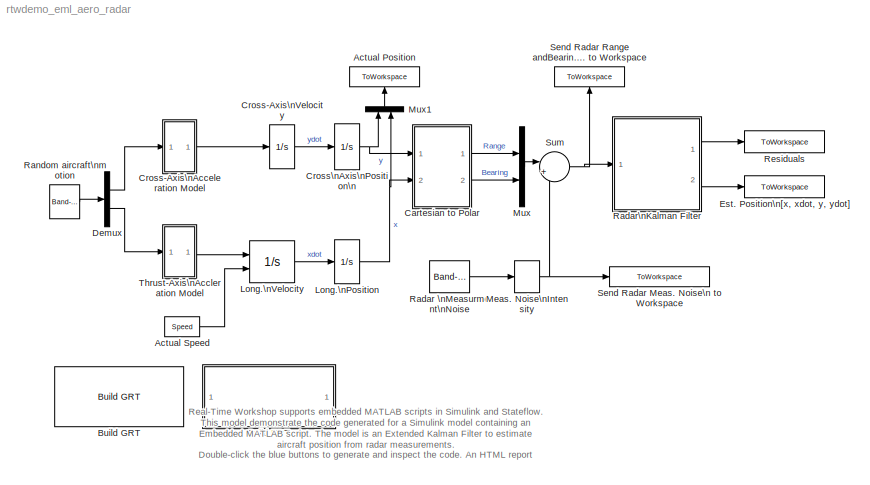
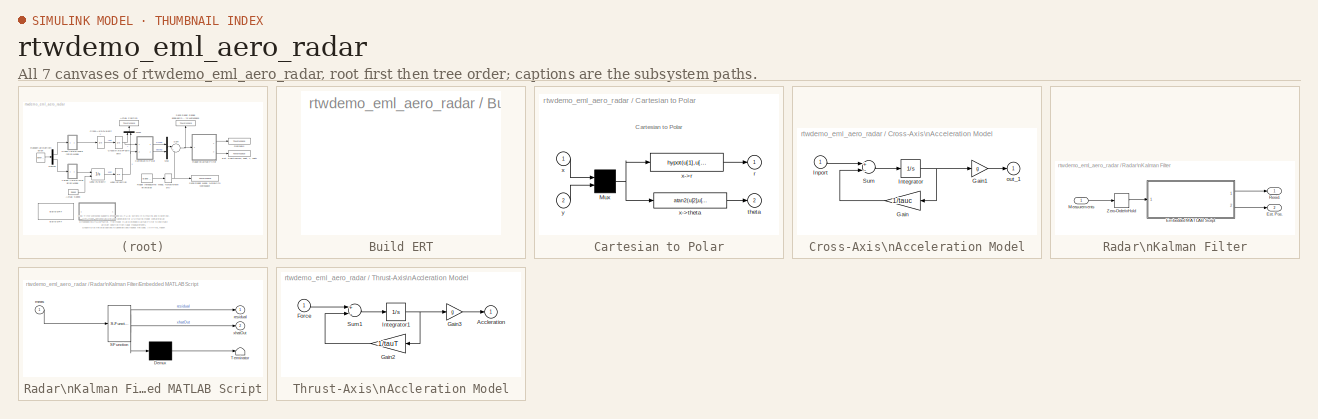
[diagram: thumbnail index - all 7 canvases of the model, root first then tree order]
MODEL rtwdemo_eml_aero_radar
KIND model
CONFIG PostLoadFcn = rtwdemo_eml_aero_radar_data
CONFIG StopFcn = aero_radplot;
BLOCK [ToWorkspace] Actual Position
  MaxDataPoints = inf
  SaveFormat = Array
  VariableName = XYCoords
BLOCK [Constant] Actual Speed
  Value = Speed
BLOCK [SubSystem] Build ERT
  AncestorBlock = rtwdemowidgets/Build ERT
  MaskDescription = Enter the attributes of the configuration set that you want preserved.  Otherwise, the default configuration script will override your current settings.
  MaskDisplay = disp(['Generate Code Using\\n',...\n	  'Real-Time Workshop\\n',...\n	  'Embedded Coder\\n'...\n	  '(double-click)'])
  MaskEnableString = on
  MaskIconFrame = on
  MaskIconOpaque = on
  MaskIconRotate = none
  MaskIconUnits = autoscale
  MaskPromptString = List of attributes to preserve (cell of strings):
  MaskStyleString = edit
  MaskToolTipString = on
  MaskTunableValueString = off
  MaskValueString = {}
  MaskVariables = attrib_overrides=&1;
  MaskVisibilityString = on
  MinAlgLoopOccurrences = off
  OpenFcn = model=bdroot;                                    \noverrides=get_param(gcb,'attrib_overrides');     \ntry                                              \n  rtwconfiguredemo(model,'noop',false,overrides);\n  cs = getActiveConfigSet(model);                \n  set_param(cs,'SupportNonFinite','on');         \n  rtwbuilddemomodel(model);                      \ncatch                                      ...<+110ch>
  Ports = []
  PropExecContextAcrossSSBoundary = on
  RTWSystemCode = Auto
  TreatAsAtomicUnit = off
BLOCK [Reference] Build GRT  REF=rtwdemowidgets/Build GRT
  Ports = []
  ShowPortLabels = on
  SourceBlock = rtwdemowidgets/Build GRT
  attrib_overrides = {}
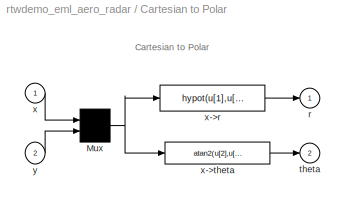
BLOCK [SubSystem] Cartesian to Polar
  MaskDescription = Tranformation from cartesian to polar\ncoordinates.\nr=sqrt(x^2+y^2), theta=atan(y/x)
  MaskDisplay = plot(0,0,100,100,[24,20,15,20,20],[85,95,85,95,20],[80,20,95,85,95,85],[70,20,20,15,20,24],[56,56,55,52,50,46],[20,26,31,35,38,42])
  MaskHelp = Unmask this block for more help.
  MaskIconFrame = on
  MaskIconOpaque = on
  MaskIconRotate = none
  MaskIconUnits = autoscale
  MaskType = [x,y]->[r,theta]
  MinAlgLoopOccurrences = off
  Ports = [2, 2]
  PropExecContextAcrossSSBoundary = on
  RTWSystemCode = Auto
  ShowPortLabels = off
  TreatAsAtomicUnit = off
BLOCK [Mux] Cartesian to Polar/Mux
  Inputs = 2
  Ports = [2, 1]
BLOCK [Outport] Cartesian to Polar/r
  BusOutputAsStruct = off
  IconDisplay = Port number
  InitialOutput = 0
BLOCK [Outport] Cartesian to Polar/theta
  BusOutputAsStruct = off
  IconDisplay = Port number
  InitialOutput = 0
  Port = 2
BLOCK [Inport] Cartesian to Polar/x
  IconDisplay = Port number
  LatchInput = off
  Port = 1
BLOCK [Fcn] Cartesian to Polar/x->r
  Expr = hypot(u[1],u[2])
BLOCK [Fcn] Cartesian to Polar/x->theta
  Expr = atan2(u[2],u[1])
BLOCK [Inport] Cartesian to Polar/y
  IconDisplay = Port number
  LatchInput = off
  Port = 2
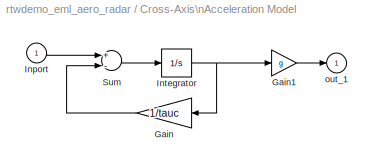
BLOCK [SubSystem] Cross-Axis\nAcceleration Model
  MinAlgLoopOccurrences = off
  Ports = [1, 1]
  PropExecContextAcrossSSBoundary = on
  RTWSystemCode = Auto
  ShowPortLabels = off
  TreatAsAtomicUnit = off
BLOCK [Gain] Cross-Axis\nAcceleration Model/Gain
  Gain = 1/tauc
BLOCK [Gain] Cross-Axis\nAcceleration Model/Gain1
  Gain = g
BLOCK [Inport] Cross-Axis\nAcceleration Model/Inport
  IconDisplay = Port number
  LatchInput = off
  Port = 1
BLOCK [Integrator] Cross-Axis\nAcceleration Model/Integrator
  Ports = [1, 1]
BLOCK [Sum] Cross-Axis\nAcceleration Model/Sum
  Inputs = +-
  Ports = [2, 1]
BLOCK [Outport] Cross-Axis\nAcceleration Model/out_1
  BusOutputAsStruct = off
  IconDisplay = Port number
  InitialOutput = 0
BLOCK [Integrator] Cross-Axis\nVelocity
  Ports = [1, 1]
BLOCK [Integrator] Cross\nAxis\nPosition\n
  Ports = [1, 1]
BLOCK [Demux] Demux
  Outputs = 2
  Ports = [1, 2]
BLOCK [ToWorkspace] Est. Position\n[x, xdot, y, ydot]
  MaxDataPoints = inf
  SampleTime = -1
  SaveFormat = Array
  VariableName = X_hat
BLOCK [Integrator] Long.\nPosition
  Ports = [1, 1]
BLOCK [Integrator] Long.\nVelocity
  InitialConditionSource = external
  Ports = [2, 1]
BLOCK [StateSpace] Meas. Noise\nIntensity
  A = []
  B = []
  C = []
  D = K
  MaskDescription = Matrix Gain.
  MaskDisplay = disp('K')
  MaskEnableString = on
  MaskHelp = Multiplies input vector by entered matrix to produce output vector (y=Au).
  MaskIconFrame = on
  MaskIconOpaque = on
  MaskIconRotate = none
  MaskIconUnits = autoscale
  MaskInitialization = K = @1;
  MaskPromptString = Gain matrix:
  MaskStyleString = edit
  MaskToolTipString = on
  MaskTunableValueString = on
  MaskType = Matrix Gain
  MaskValueString = [300 0; 0 .01]
  MaskVisibilityString = on
BLOCK [Mux] Mux
  DisplayOption = bar
  Inputs = 2
  Ports = [2, 1]
BLOCK [Mux] Mux1
  DisplayOption = bar
  Inputs = 2
  Ports = [2, 1]
BLOCK [Reference] Radar \nMeasurment\nNoise  REF=simulink/Sources/Band-Limited\nWhite Noise
  Cov = [1 1]
  Ports = [0, 1]
  ShowPortLabels = on
  SourceBlock = simulink/Sources/Band-Limited\nWhite Noise
  SourceType = Band-Limited White Noise.
  Ts = 0.1
  VectorParams1D = on
  seed = [52341 62341]
BLOCK [SubSystem] Radar\nKalman Filter
  MinAlgLoopOccurrences = off
  Ports = [1, 2]
  PropExecContextAcrossSSBoundary = on
  RTWSystemCode = Auto
  TreatAsAtomicUnit = off
BLOCK [SubSystem] Radar\nKalman Filter/Embedded MATLAB Script
  MaskDescription = Stateflow diagram
  MaskDisplay = disp('AERO_EXTKALMAN');
  MaskIconFrame = on
  MaskIconOpaque = off
  MaskIconRotate = none
  MaskIconUnits = autoscale
  MaskSelfModifiable = on
  MaskType = Stateflow
  MinAlgLoopOccurrences = off
  Ports = [1, 2]
  PropExecContextAcrossSSBoundary = on
  RTWSystemCode = Auto
  TreatAsAtomicUnit = off
BLOCK [Demux] Radar\nKalman Filter/Embedded MATLAB Script/ Demux 
  Outputs = 1
  Ports = [1, 1]
BLOCK [S-Function] Radar\nKalman Filter/Embedded MATLAB Script/ SFunction 
  FunctionName = sf_sfun
  Parameters = deltat
  PortCounts = [1 3]
  Ports = [1, 3]
  Tag = Stateflow S-Function rtwdemo_eml_aero_radar 1
BLOCK [Terminator] Radar\nKalman Filter/Embedded MATLAB Script/ Terminator 
BLOCK [Inport] Radar\nKalman Filter/Embedded MATLAB Script/meas
  IconDisplay = Port number
  LatchInput = off
  Port = 1
BLOCK [Outport] Radar\nKalman Filter/Embedded MATLAB Script/residual
  BusOutputAsStruct = off
  IconDisplay = Port number
BLOCK [Outport] Radar\nKalman Filter/Embedded MATLAB Script/xhatOut
  BusOutputAsStruct = off
  IconDisplay = Port number
  Port = 2
BLOCK [Outport] Radar\nKalman Filter/Est. Pos.
  BusOutputAsStruct = off
  IconDisplay = Port number
  InitialOutput = 0
  Port = 2
BLOCK [Inport] Radar\nKalman Filter/Measurements
  IconDisplay = Port number
  LatchInput = off
  Port = 1
BLOCK [Outport] Radar\nKalman Filter/Resid.
  BusOutputAsStruct = off
  IconDisplay = Port number
  InitialOutput = 0
BLOCK [ZeroOrderHold] Radar\nKalman Filter/Zero-Order\nHold
  SampleTime = deltat
BLOCK [Reference] Random aircraft\nmotion  REF=simulink/Sources/Band-Limited\nWhite Noise
  Cov = [0.001 .001]
  Ports = [0, 1]
  ShowPortLabels = on
  SourceBlock = simulink/Sources/Band-Limited\nWhite Noise
  SourceType = Band-Limited White Noise.
  Ts = 0.1
  VectorParams1D = on
  seed = [58413 74925]
BLOCK [ToWorkspace] Residuals
  MaxDataPoints = inf
  SampleTime = -1
  SaveFormat = Array
  VariableName = residual
BLOCK [ToWorkspace] Send Radar Meas. Noise\n to Workspace
  MaxDataPoints = inf
  SaveFormat = Array
  VariableName = Measurement_noise
BLOCK [ToWorkspace] Send Radar Range andBearing\n Angle Meas. to Workspace
  MaxDataPoints = inf
  SampleTime = -1
  SaveFormat = Array
  VariableName = PolarCoords
BLOCK [Sum] Sum
  IconShape = round
  Inputs = |++
  Ports = [2, 1]
BLOCK [SubSystem] Thrust-Axis\nAccleration Model
  MinAlgLoopOccurrences = off
  Ports = [1, 1]
  PropExecContextAcrossSSBoundary = on
  RTWSystemCode = Auto
  ShowPortLabels = off
  TreatAsAtomicUnit = off
BLOCK [Outport] Thrust-Axis\nAccleration Model/Accleration
  BusOutputAsStruct = off
  IconDisplay = Port number
  InitialOutput = 0
BLOCK [Inport] Thrust-Axis\nAccleration Model/Force
  IconDisplay = Port number
  LatchInput = off
  Port = 1
BLOCK [Gain] Thrust-Axis\nAccleration Model/Gain2
  Gain = 1/tauT
BLOCK [Gain] Thrust-Axis\nAccleration Model/Gain3
  Gain = g
BLOCK [Integrator] Thrust-Axis\nAccleration Model/Integrator1
  Ports = [1, 1]
BLOCK [Sum] Thrust-Axis\nAccleration Model/Sum1
  Inputs = +-
  Ports = [2, 1]
ANNOTATION (root): Real-Time Workshop supports embedded MATLAB scripts in Simulink and Stateflow.\nThis model demonstrate the code generated for a Simulink model containing an\nEmbedded MATLAB script. The model is an Extended Kalman Filter to estimate\naircraft position from radar measurements.\n\nDouble-click the blue buttons to generate and inspect the code. An HTML report\ndetailing the code is automatically disp...<+6ch>
ANNOTATION Cartesian to Polar: Cartesian to Polar
LINE Actual Speed:1 -> Long.\nVelocity:2
NET Cartesian to Polar/Mux:1 -> Cartesian to Polar/x->r:1, Cartesian to Polar/x->theta:1
LINE Cartesian to Polar/x->r:1 -> Cartesian to Polar/r:1
LINE Cartesian to Polar/x->theta:1 -> Cartesian to Polar/theta:1
LINE Cartesian to Polar/x:1 -> Cartesian to Polar/Mux:1
LINE Cartesian to Polar/y:1 -> Cartesian to Polar/Mux:2
LINE Cartesian to Polar:1 -> Mux:1
LINE Cartesian to Polar:2 -> Mux:2
LINE Cross-Axis\nAcceleration Model/Gain1:1 -> Cross-Axis\nAcceleration Model/out_1:1
LINE Cross-Axis\nAcceleration Model/Gain:1 -> Cross-Axis\nAcceleration Model/Sum:2
LINE Cross-Axis\nAcceleration Model/Inport:1 -> Cross-Axis\nAcceleration Model/Sum:1
NET Cross-Axis\nAcceleration Model/Integrator:1 -> Cross-Axis\nAcceleration Model/Gain1:1, Cross-Axis\nAcceleration Model/Gain:1
LINE Cross-Axis\nAcceleration Model/Sum:1 -> Cross-Axis\nAcceleration Model/Integrator:1
LINE Cross-Axis\nAcceleration Model:1 -> Cross-Axis\nVelocity:1
LINE Cross-Axis\nVelocity:1 -> Cross\nAxis\nPosition\n:1
NET Cross\nAxis\nPosition\n:1 -> Cartesian to Polar:1, Mux1:1
LINE Demux:1 -> Cross-Axis\nAcceleration Model:1
LINE Demux:2 -> Thrust-Axis\nAccleration Model:1
NET Long.\nPosition:1 -> Cartesian to Polar:2, Mux1:2
LINE Long.\nVelocity:1 -> Long.\nPosition:1
NET Meas. Noise\nIntensity:1 -> Send Radar Meas. Noise\n to Workspace:1, Sum:2
LINE Mux1:1 -> Actual Position:1
LINE Mux:1 -> Sum:1
LINE Radar \nMeasurment\nNoise:1 -> Meas. Noise\nIntensity:1
LINE Radar\nKalman Filter/Embedded MATLAB Script/ Demux :1 -> Radar\nKalman Filter/Embedded MATLAB Script/ Terminator :1
LINE Radar\nKalman Filter/Embedded MATLAB Script/ SFunction :1 -> Radar\nKalman Filter/Embedded MATLAB Script/ Demux :1
LINE Radar\nKalman Filter/Embedded MATLAB Script/ SFunction :2 -> Radar\nKalman Filter/Embedded MATLAB Script/residual:1
LINE Radar\nKalman Filter/Embedded MATLAB Script/ SFunction :3 -> Radar\nKalman Filter/Embedded MATLAB Script/xhatOut:1
LINE Radar\nKalman Filter/Embedded MATLAB Script/meas:1 -> Radar\nKalman Filter/Embedded MATLAB Script/ SFunction :1
LINE Radar\nKalman Filter/Embedded MATLAB Script:1 -> Radar\nKalman Filter/Resid.:1
LINE Radar\nKalman Filter/Embedded MATLAB Script:2 -> Radar\nKalman Filter/Est. Pos.:1
LINE Radar\nKalman Filter/Measurements:1 -> Radar\nKalman Filter/Zero-Order\nHold:1
LINE Radar\nKalman Filter/Zero-Order\nHold:1 -> Radar\nKalman Filter/Embedded MATLAB Script:1
LINE Radar\nKalman Filter:1 -> Residuals:1
LINE Radar\nKalman Filter:2 -> Est. Position\n[x, xdot, y, ydot]:1
LINE Random aircraft\nmotion:1 -> Demux:1
NET Sum:1 -> Radar\nKalman Filter:1, Send Radar Range andBearing\n Angle Meas. to Workspace:1
LINE Thrust-Axis\nAccleration Model/Force:1 -> Thrust-Axis\nAccleration Model/Sum1:1
LINE Thrust-Axis\nAccleration Model/Gain2:1 -> Thrust-Axis\nAccleration Model/Sum1:2
LINE Thrust-Axis\nAccleration Model/Gain3:1 -> Thrust-Axis\nAccleration Model/Accleration:1
NET Thrust-Axis\nAccleration Model/Integrator1:1 -> Thrust-Axis\nAccleration Model/Gain2:1, Thrust-Axis\nAccleration Model/Gain3:1
LINE Thrust-Axis\nAccleration Model/Sum1:1 -> Thrust-Axis\nAccleration Model/Integrator1:1
LINE Thrust-Axis\nAccleration Model:1 -> Long.\nVelocity:1
note: NET lines group one-source signal fan-out (src -> all destinations, sorted); 1:1 wires keep LINE
CHART Radar\nKalman Filter/Embedded MATLAB Script states=1 transitions=1
  STATE_LABEL 'eML_blk_kernel()'
